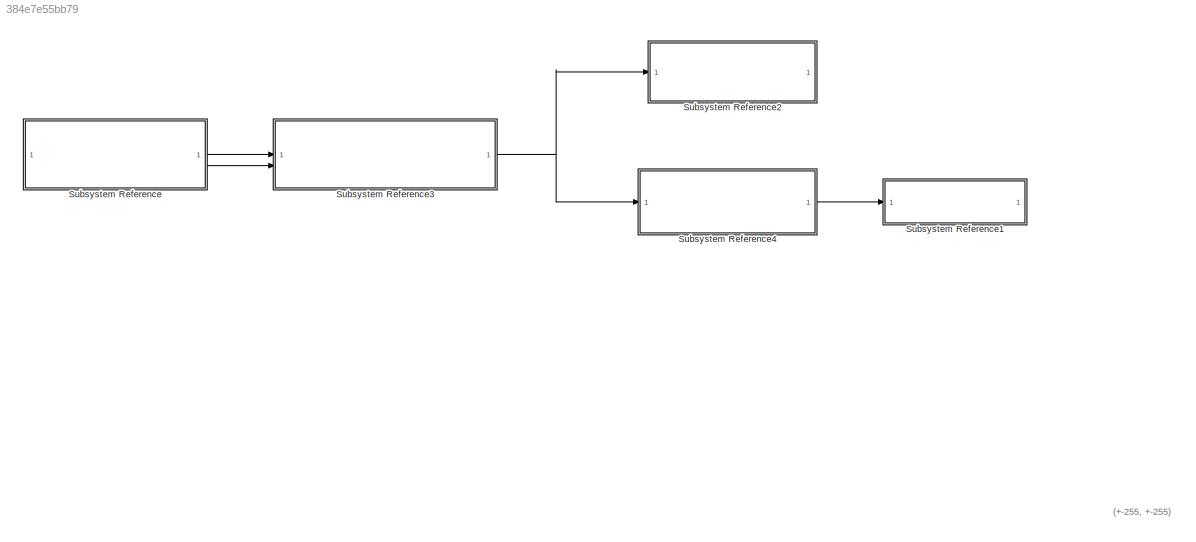
MODEL slx_384e7e55bb79
KIND model
CONFIG AbsTol = auto
CONFIG EnableMultiTasking = on
CONFIG FixedStep = auto
CONFIG MaxStep = auto
CONFIG MinStep = auto
CONFIG RelTol = 1e-3
CONFIG SampleTimeConstraint = Unconstrained
CONFIG SolverName = FixedStepAuto
CONFIG StartTime = 0.0
CONFIG StopTime = inf
BLOCK [SubSystem] Subsystem Reference
  ReferencedSubsystem = sensores
BLOCK [SubSystem] Subsystem Reference1
  ReferencedSubsystem = motores
BLOCK [SubSystem] Subsystem Reference2
  ReferencedSubsystem = Leds
BLOCK [SubSystem] Subsystem Reference3
  ReferencedSubsystem = Control_Leds
BLOCK [SubSystem] Subsystem Reference4
  ReferencedSubsystem = Control_Motores
ANNOTATION (root): (+-255, +-255)
NET Subsystem Reference3:1 -> Subsystem Reference2:1, Subsystem Reference4:1
LINE Subsystem Reference4:1 -> Subsystem Reference1:1
LINE Subsystem Reference:1 -> Subsystem Reference3:1
LINE Subsystem Reference:2 -> Subsystem Reference3:2
note: NET lines group one-source signal fan-out (src -> all destinations, sorted); 1:1 wires keep LINE
